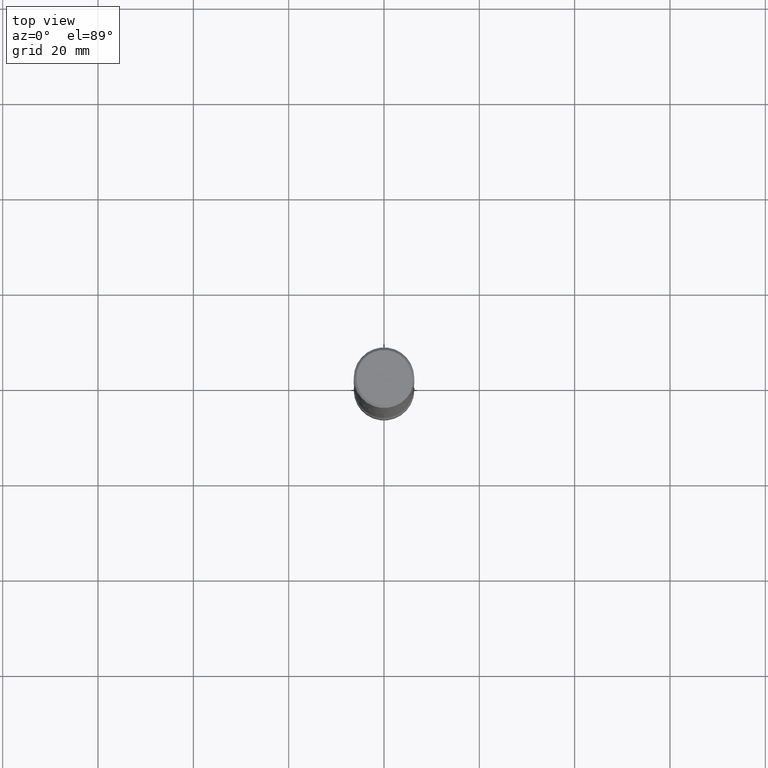
[diagram: clean part render]
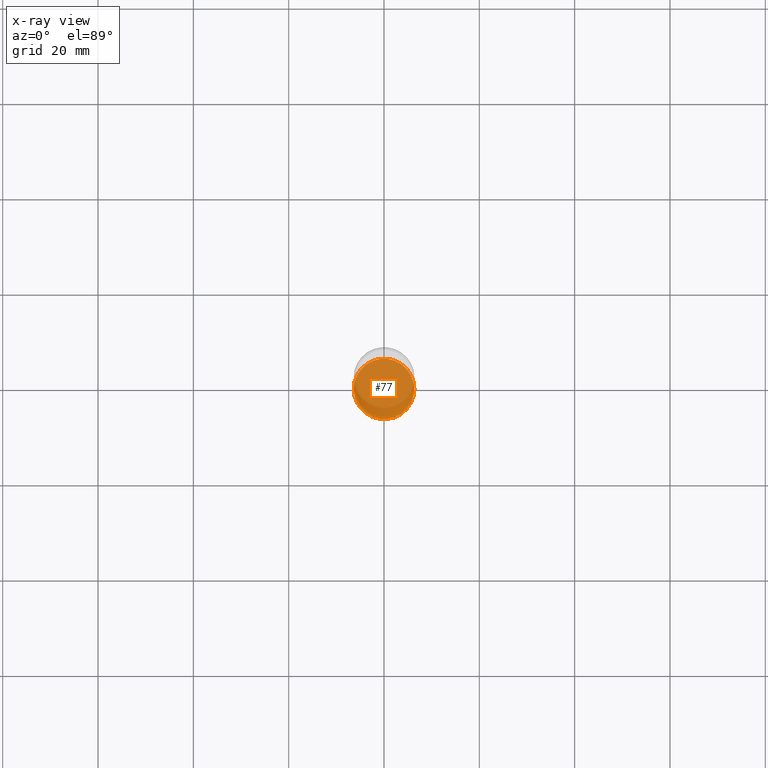
[diagram: x-ray — body ghosted, one internal face saturated and labeled with its STEP entity id]
A machine part, top view, then the same camera in x-ray: the body is ghosted and one INTERNAL B-rep face — a face not visible from any outside direction — is saturated and labeled: STEP entity #77.
In plain terms, the highlighted planar face has unit normal (0, -0, -1).
Its self-contained STEP definition (entity closure, byte-faithful):
#15 = EDGE_CURVE ( 'NONE', #108, #546, #316, .T. ) ;
#67 = CIRCLE ( 'NONE', #386, 0.2500000000000002220 ) ;
#74 = DIRECTION ( 'NONE',  ( 2.438088387897960049E-29, -3.491481338843145188E-15, -1.000000000000000000 ) ) ;
#76 = DIRECTION ( 'NONE',  ( -1.000000000000000000, 6.982962677686265922E-15, -4.876176775795935793E-29 ) ) ;
#77 = ADVANCED_FACE ( 'NONE', ( #332 ), #248, .F. ) ;
#108 = VERTEX_POINT ( 'NONE', #375 ) ;
#112 = CARTESIAN_POINT ( 'NONE',  ( 1.314439483324511145E-28, -1.876671219628190963E-14, -5.375000000000000888 ) ) ;
#178 = CARTESIAN_POINT ( 'NONE',  ( 1.314439483324511145E-28, -1.876671219628190963E-14, -5.375000000000000888 ) ) ;
#213 = EDGE_CURVE ( 'NONE', #546, #108, #67, .T. ) ;
#215 = AXIS2_PLACEMENT_3D ( 'NONE', #178, #308, #435 ) ;
#248 = PLANE ( 'NONE',  #290 ) ;
#269 = ORIENTED_EDGE ( 'NONE', *, *, #15, .T. ) ;
#276 = EDGE_LOOP ( 'NONE', ( #537, #269 ) ) ;
#286 = DIRECTION ( 'NONE',  ( 1.000000000000000000, -6.982962677686272233E-15, 0.000000000000000000 ) ) ;
#290 = AXIS2_PLACEMENT_3D ( 'NONE', #327, #74, #76 ) ;
#308 = DIRECTION ( 'NONE',  ( -2.445468806185136597E-29, 3.491481338843145583E-15, 1.000000000000000000 ) ) ;
#316 = CIRCLE ( 'NONE', #215, 0.2500000000000002220 ) ;
#327 = CARTESIAN_POINT ( 'NONE',  ( 1.314439483324511145E-28, -1.876671219628190963E-14, -5.375000000000000888 ) ) ;
#332 = FACE_OUTER_BOUND ( 'NONE', #276, .T. ) ;
#375 = CARTESIAN_POINT ( 'NONE',  ( -0.2500000000000002220, -1.802907105518749402E-14, -5.375000000000000888 ) ) ;
#384 = CARTESIAN_POINT ( 'NONE',  ( 0.2500000000000002220, -2.051245286570347946E-14, -5.375000000000000888 ) ) ;
#386 = AXIS2_PLACEMENT_3D ( 'NONE', #112, #528, #286 ) ;
#435 = DIRECTION ( 'NONE',  ( 1.000000000000000000, -6.982962677686272233E-15, 0.000000000000000000 ) ) ;
#528 = DIRECTION ( 'NONE',  ( -2.445468806185136597E-29, 3.491481338843145583E-15, 1.000000000000000000 ) ) ;
#537 = ORIENTED_EDGE ( 'NONE', *, *, #213, .T. ) ;
#546 = VERTEX_POINT ( 'NONE', #384 ) ;